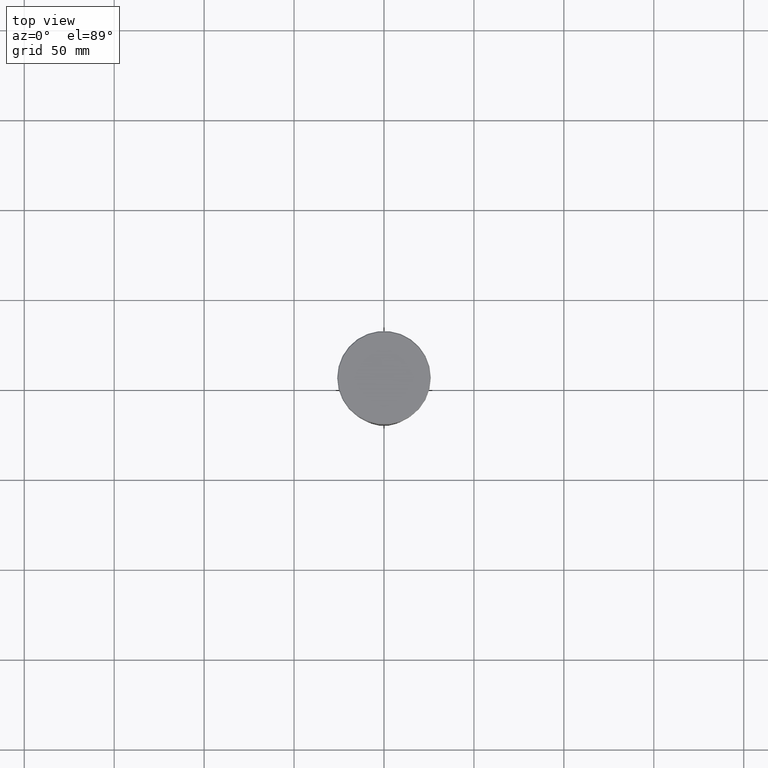
[diagram: clean part render]
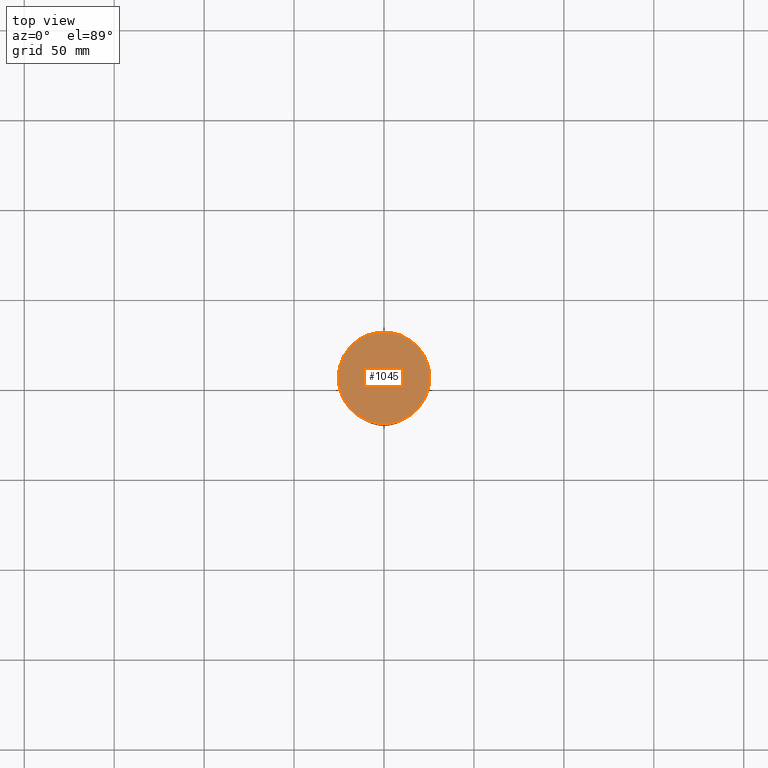
[diagram: same view with one face highlighted and labeled with its STEP entity id]
A machine part, top view. The second image highlights one B-rep face of the part: STEP entity #1045.
In plain terms, the highlighted planar face has unit normal (0, -0, 1).
Its self-contained STEP definition (entity closure, byte-faithful):
#134 = CARTESIAN_POINT ( 'NONE',  ( 25.50000000000002487, 3.153465507804435981E-15, 0.000000000000000000 ) ) ;
#142 = CIRCLE ( 'NONE', #300, 25.50000000000002487 ) ;
#152 = DIRECTION ( 'NONE',  ( 1.000000000000000000, 0.000000000000000000, 0.000000000000000000 ) ) ;
#174 = CARTESIAN_POINT ( 'NONE',  ( 0.000000000000000000, 0.000000000000000000, 0.000000000000000000 ) ) ;
#252 = VERTEX_POINT ( 'NONE', #796 ) ;
#285 = EDGE_CURVE ( 'NONE', #1063, #252, #546, .T. ) ;
#300 = AXIS2_PLACEMENT_3D ( 'NONE', #174, #362, #152 ) ;
#319 = FACE_OUTER_BOUND ( 'NONE', #370, .T. ) ;
#362 = DIRECTION ( 'NONE',  ( -0.000000000000000000, -0.000000000000000000, 1.000000000000000000 ) ) ;
#370 = EDGE_LOOP ( 'NONE', ( #1064, #784 ) ) ;
#496 = DIRECTION ( 'NONE',  ( 0.000000000000000000, -0.000000000000000000, 1.000000000000000000 ) ) ;
#499 = CARTESIAN_POINT ( 'NONE',  ( 0.000000000000000000, 0.000000000000000000, 0.000000000000000000 ) ) ;
#546 = CIRCLE ( 'NONE', #687, 25.50000000000002487 ) ;
#687 = AXIS2_PLACEMENT_3D ( 'NONE', #870, #1166, #705 ) ;
#705 = DIRECTION ( 'NONE',  ( 1.000000000000000000, 0.000000000000000000, 0.000000000000000000 ) ) ;
#784 = ORIENTED_EDGE ( 'NONE', *, *, #285, .T. ) ;
#796 = CARTESIAN_POINT ( 'NONE',  ( -25.50000000000002487, 0.000000000000000000, 0.000000000000000000 ) ) ;
#826 = AXIS2_PLACEMENT_3D ( 'NONE', #499, #496, #851 ) ;
#851 = DIRECTION ( 'NONE',  ( 1.000000000000000000, 0.000000000000000000, 0.000000000000000000 ) ) ;
#870 = CARTESIAN_POINT ( 'NONE',  ( 0.000000000000000000, 0.000000000000000000, 0.000000000000000000 ) ) ;
#939 = PLANE ( 'NONE',  #826 ) ;
#1045 = ADVANCED_FACE ( 'NONE', ( #319 ), #939, .T. ) ;
#1063 = VERTEX_POINT ( 'NONE', #134 ) ;
#1064 = ORIENTED_EDGE ( 'NONE', *, *, #1100, .T. ) ;
#1100 = EDGE_CURVE ( 'NONE', #252, #1063, #142, .T. ) ;
#1166 = DIRECTION ( 'NONE',  ( -0.000000000000000000, -0.000000000000000000, 1.000000000000000000 ) ) ;